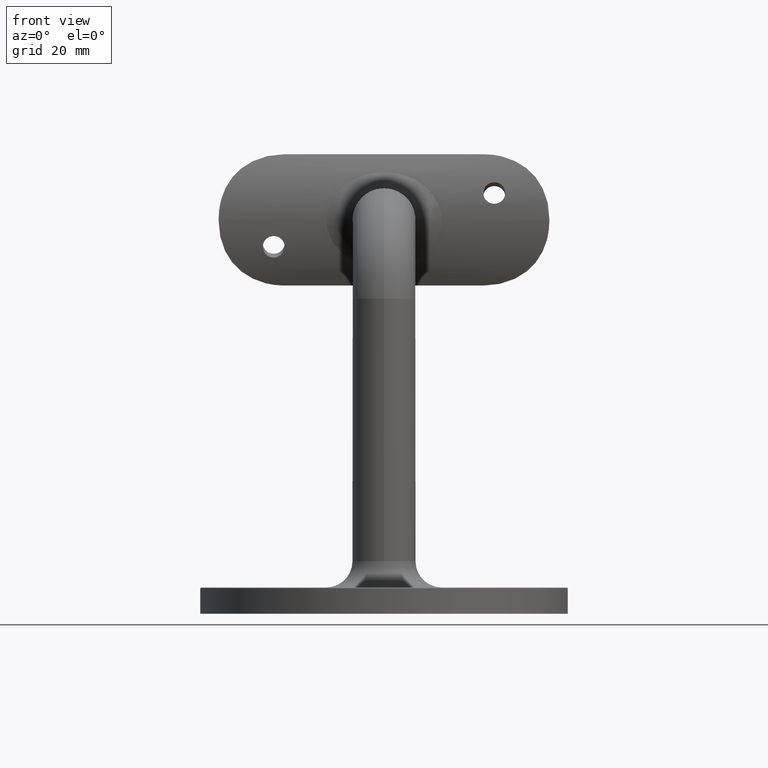
[diagram: clean part render]
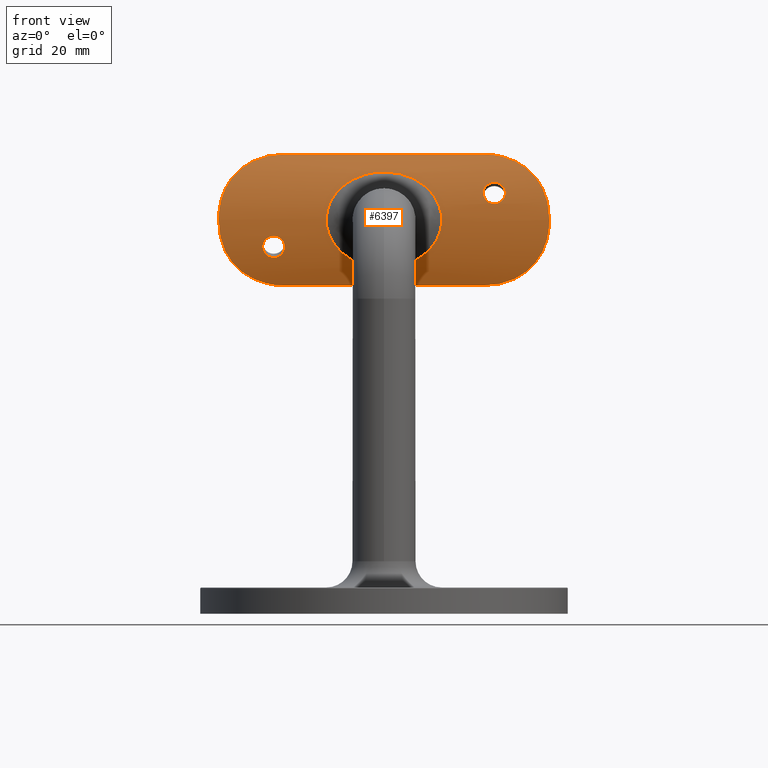
[diagram: same view with one face highlighted and labeled with its STEP entity id]
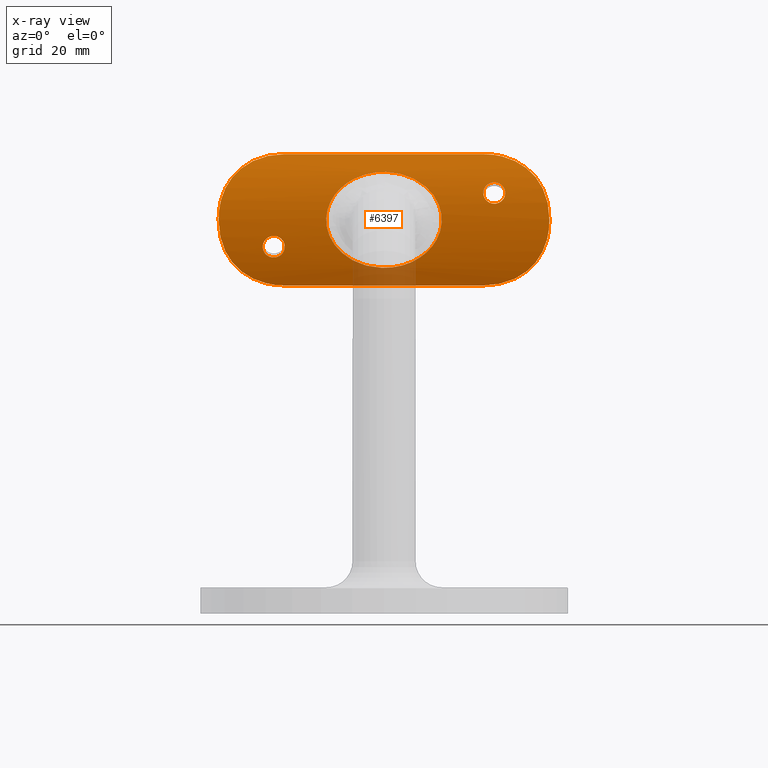
[diagram: x-ray of the same camera — body ghosted, the highlighted face saturated]
A machine part, front view. The second image highlights one B-rep face of the part: STEP entity #6397.
The next image is the same camera in x-ray: the body ghosted, the highlighted face saturated — about 4% of this face is hidden behind the body in this view.
In plain terms, the highlighted cylindrical surface (partial cylindrical patch) has radius 24.7 mm, axis along (-1, -0, -0).
Its self-contained STEP definition (entity closure, byte-faithful):
#63 = AXIS2_PLACEMENT_3D ( 'NONE', #14861, #9774, #8463 ) ;
#69 = EDGE_CURVE ( 'NONE', #14008, #1720, #5867, .T. ) ;
#77 = CARTESIAN_POINT ( 'NONE',  ( 4.872454573996778393, 42.90276968480641528, 83.20664368184917237 ) ) ;
#84 = CARTESIAN_POINT ( 'NONE',  ( -20.72782808017908351, 44.85291421594786954, 87.42658132568875828 ) ) ;
#210 = B_SPLINE_CURVE_WITH_KNOTS ( 'NONE', 3,
 ( #11299, #12545, #15004, #2520, #1278, #13742, #77, #7501, #8777, #5959, #12151, #934, #13405, #7168, #9677, #5905, #2177, #3433, #12194, #4685, #13455, #2127, #10917, #14663, #15913, #3377, #8433, #10275, #7760, #2760, #266, #1520, #14005, #6507, #15256, #10509, #4343, #6796, #7230, #13902, #7508, #6259, #10037, #13801, #4988, #4079, #11503, #2908 ),
 .UNSPECIFIED., .F., .F.,
 ( 4, 2, 2, 2, 2, 2, 2, 2, 2, 2, 2, 2, 2, 2, 2, 2, 2, 2, 2, 2, 2, 2, 2, 4 ),
 ( 0.03253568018710911725, 0.03454657164142777015, 0.03655746309574642305, 0.03756290882290573563, 0.03856835455006505514, 0.04057924600438370805, 0.04158469173154303450, 0.04259013745870236095, 0.04460102891302097916, 0.04560647464018028480, 0.04661192036733959737, 0.04761736609449890301, 0.04862281182165821558, 0.05063370327597683379, 0.05163914900313612555, 0.05264459473029541037, 0.05365004045745470906, 0.05465548618461399388, 0.05666637763893260515, 0.05867726909325121643, 0.06068816054756983464, 0.06169360627472914027, 0.06269905200188845285, 0.06470994345620707799 ),
 .UNSPECIFIED. ) ;
#247 = CARTESIAN_POINT ( 'NONE',  ( -1.684584452126166143, 43.22013183291234384, 65.94287593801342950 ) ) ;
#266 = CARTESIAN_POINT ( 'NONE',  ( 9.996395401446841689, 41.79716958061870713, 71.16955994305570243 ) ) ;
#302 = CARTESIAN_POINT ( 'NONE',  ( -31.50000000000000711, 41.50205144881955022, 75.90362661367565522 ) ) ;
#361 = CARTESIAN_POINT ( 'NONE',  ( -6.600682251767399755, 42.61293439171232222, 82.34144853293044264 ) ) ;
#414 = CARTESIAN_POINT ( 'NONE',  ( -10.43769755079440209, 41.66950443331052867, 72.09429772740101328 ) ) ;
#459 = CARTESIAN_POINT ( 'NONE',  ( -8.401301433148992359, 42.21694680516461062, 80.91288351429837178 ) ) ;
#504 = CARTESIAN_POINT ( 'NONE',  ( 22.99315008041344299, 41.90802329249095948, 79.47281540614903861 ) ) ;
#514 = CARTESIAN_POINT ( 'NONE',  ( -27.76184477868658362, 43.32093708120258668, 65.68707166927234198 ) ) ;
#614 = CARTESIAN_POINT ( 'NONE',  ( 22.66945329582349089, 42.33842489656655061, 81.38187100989847522 ) ) ;
#777 = CARTESIAN_POINT ( 'NONE',  ( -22.67000526458961929, 41.80574735680990983, 71.12399617387612238 ) ) ;
#785 = CIRCLE ( 'NONE', #6466, 24.69999999999999929 ) ;
#800 = VERTEX_POINT ( 'NONE', #15422 ) ;
#907 = DIRECTION ( 'NONE',  ( -1.000000000000000000, -0.000000000000000000, -0.000000000000000000 ) ) ;
#926 = CARTESIAN_POINT ( 'NONE',  ( -23.04472287198527525, 42.15912961825769401, 69.32633465668399708 ) ) ;
#928 = CARTESIAN_POINT ( 'NONE',  ( -19.17799096240807089, 41.84250551968166576, 70.89932851290916460 ) ) ;
#934 = CARTESIAN_POINT ( 'NONE',  ( 7.944999591830629093, 42.32493675499453190, 81.33380413622651872 ) ) ;
#960 = CARTESIAN_POINT ( 'NONE',  ( 31.14613448684933772, 41.72781713171702478, 78.37170682471537475 ) ) ;
#966 = CARTESIAN_POINT ( 'NONE',  ( -31.50000000000000000, 66.19999999999997442, 75.00000000000001421 ) ) ;
#982 = CARTESIAN_POINT ( 'NONE',  ( -21.00000000000000000, 41.69061854573615733, 71.93728539863921867 ) ) ;
#1023 = B_SPLINE_CURVE_WITH_KNOTS ( 'NONE', 3,
 ( #4762, #14631, #14532, #15936, #960, #12126, #5931, #13481, #15779, #5824, #14688, #5985, #9554, #8298, #2043, #5878, #3296, #12076, #2202, #9608, #10989, #7252, #14577, #8352, #10885, #7137 ),
 .UNSPECIFIED., .F., .F.,
 ( 4, 2, 2, 2, 2, 2, 2, 2, 2, 2, 2, 2, 4 ),
 ( 0.000000000000000000, 0.002503786883920802904, 0.003755680325881185274, 0.005007573767841567644, 0.007511360651762287281, 0.008763254093722647534, 0.01001514753568300692, 0.01126704097764336804, 0.01251893441960372569, 0.01502272130352447568, 0.01627461474548485415, 0.01752650818744522915, 0.02003029507136598608 ),
 .UNSPECIFIED. ) ;
#1033 = CARTESIAN_POINT ( 'NONE',  ( -21.00000000000000000, 41.69061854573615733, 71.93728539863921867 ) ) ;
#1034 = CARTESIAN_POINT ( 'NONE',  ( -19.32868947752261235, 42.33779530304315131, 68.62048294880501942 ) ) ;
#1113 = EDGE_CURVE ( 'NONE', #5443, #14988, #785, .T. ) ;
#1162 = CARTESIAN_POINT ( 'NONE',  ( 21.00000000000000000, 42.56384764717074631, 82.17093452444278512 ) ) ;
#1278 = CARTESIAN_POINT ( 'NONE',  ( 3.635122674162370782, 43.06387443427399120, 83.65233218203685794 ) ) ;
#1345 = CARTESIAN_POINT ( 'NONE',  ( -21.95443101760652738, 44.72812351044601797, 87.20882954038792434 ) ) ;
#1395 = CARTESIAN_POINT ( 'NONE',  ( -31.43619966513210784, 41.54736192328785194, 76.73851407531218172 ) ) ;
#1494 = CARTESIAN_POINT ( 'NONE',  ( -7.440181555786860912, 42.43770793998948676, 68.25539880285865024 ) ) ;
#1496 = DIRECTION ( 'NONE',  ( 0.000000000000000000, 0.000000000000000000, 1.000000000000000000 ) ) ;
#1520 = CARTESIAN_POINT ( 'NONE',  ( 9.658252562446143941, 41.89153585306718242, 70.61035601395668948 ) ) ;
#1552 = CARTESIAN_POINT ( 'NONE',  ( -5.140847557138129353, 42.86287834460944879, 83.09264467946607624 ) ) ;
#1603 = CARTESIAN_POINT ( 'NONE',  ( -2.947382341911235937, 43.13193455389411923, 83.83131014485644528 ) ) ;
#1654 = CARTESIAN_POINT ( 'NONE',  ( -10.93805281357848891, 41.51907679513693950, 76.02480747972933273 ) ) ;
#1708 = CARTESIAN_POINT ( 'NONE',  ( -7.403834470665106693, 42.44566420942617668, 81.77205019115316986 ) ) ;
#1720 = VERTEX_POINT ( 'NONE', #11779 ) ;
#1745 = CARTESIAN_POINT ( 'NONE',  ( -20.99999999999999289, 42.56384764717074631, 67.82906547555724330 ) ) ;
#1804 = CARTESIAN_POINT ( 'NONE',  ( -29.35906535816679508, 42.65880499650769053, 67.51469781237690881 ) ) ;
#1945 = EDGE_CURVE ( 'NONE', #7347, #7781, #9642, .T. ) ;
#2043 = CARTESIAN_POINT ( 'NONE',  ( 27.45985867694583860, 43.43162678261797538, 84.57945683619591648 ) ) ;
#2050 = FACE_BOUND ( 'NONE', #8150, .T. ) ;
#2066 = CARTESIAN_POINT ( 'NONE',  ( -21.54380894553168702, 42.54439526066104804, 67.89344794952482687 ) ) ;
#2072 = VECTOR ( 'NONE', #907, 1000.000000000000000 ) ;
#2119 = CARTESIAN_POINT ( 'NONE',  ( -19.70982308816636674, 41.74575149965352949, 71.51901036193714845 ) ) ;
#2127 = CARTESIAN_POINT ( 'NONE',  ( 10.89275932152678905, 41.53295335769302454, 76.31568997514895614 ) ) ;
#2169 = CARTESIAN_POINT ( 'NONE',  ( -22.38716911029294110, 41.76014907138161192, 71.42322260092714714 ) ) ;
#2171 = CARTESIAN_POINT ( 'NONE',  ( -19.11343352862433420, 41.86275955355295508, 70.78041734081409686 ) ) ;
#2177 = CARTESIAN_POINT ( 'NONE',  ( 9.864512733696521707, 41.83505211019727454, 79.09863196103536609 ) ) ;
#2202 = CARTESIAN_POINT ( 'NONE',  ( 24.72123905342252570, 44.25004455545104776, 86.33129445782418543 ) ) ;
#2223 = CARTESIAN_POINT ( 'NONE',  ( -18.96737424509784731, 41.93194380461432758, 70.39897104927369753 ) ) ;
#2236 = CARTESIAN_POINT ( 'NONE',  ( 18.96727415913833426, 42.15855990290837951, 80.66721325637685425 ) ) ;
#2246 = EDGE_CURVE ( 'NONE', #15912, #5356, #15823, .T. ) ;
#2280 = CARTESIAN_POINT ( 'NONE',  ( -19.61080903216292981, 42.41776290519192116, 68.32882141953935218 ) ) ;
#2292 = CARTESIAN_POINT ( 'NONE',  ( 19.61160801795997344, 41.76033104013364294, 78.57798753950463322 ) ) ;
#2437 = CARTESIAN_POINT ( 'NONE',  ( -20.99999999999999289, 42.56384764717074631, 67.82906547555724330 ) ) ;
#2483 = ORIENTED_EDGE ( 'NONE', *, *, #9386, .T. ) ;
#2520 = CARTESIAN_POINT ( 'NONE',  ( 2.995363633577913909, 43.12816206772312455, 83.82023724693674183 ) ) ;
#2526 = CARTESIAN_POINT ( 'NONE',  ( -23.16330365484825293, 44.55456516087998864, 86.89877737650746781 ) ) ;
#2688 = CARTESIAN_POINT ( 'NONE',  ( -5.482774161952454151, 42.81251327661428263, 67.04855217261797407 ) ) ;
#2702 = B_SPLINE_CURVE_WITH_KNOTS ( 'NONE', 3,
 ( #5216, #3777, #247, #5046, #3928, #9003, #2688, #11457, #12716, #7733, #1494, #6316, #11564, #12874, #15333, #7958, #9107, #6693, #414, #11673, #4037, #9158, #2844, #6588, #1654, #2900, #4144, #12927, #2786, #5434, #12816, #15444, #10364, #459, #7852, #9213, #1708, #361, #10474, #1552, #10307, #11622, #5326, #1603, #14097, #4086, #5376, #14151, #6642, #15394 ),
 .UNSPECIFIED., .F., .F.,
 ( 4, 2, 2, 2, 2, 2, 2, 2, 2, 2, 2, 2, 2, 2, 2, 2, 2, 2, 2, 2, 2, 2, 2, 2, 4 ),
 ( 0.0003546552613431988707, 0.002365969319203485143, 0.004377283377063771741, 0.006388597434924058772, 0.007394254463854213130, 0.008399911492784368355, 0.01041122555064469962, 0.01141688257957486873, 0.01242253960850503609, 0.01342819663743520520, 0.01443385366636537430, 0.01644516772422575240, 0.01745082475315595794, 0.01845648178208616694, 0.01946213881101637247, 0.02046779583994658147, 0.02247910989780700294, 0.02348476692673721195, 0.02449042395566742442, 0.02650173801352786671, 0.02750739504245807918, 0.02851305207138829165, 0.03052436612924869924, 0.03153002315817891171, 0.03253568018710911725 ),
 .UNSPECIFIED. ) ;
#2760 = CARTESIAN_POINT ( 'NONE',  ( 10.14996444479055882, 41.75323852907643385, 71.45913760891259869 ) ) ;
#2786 = CARTESIAN_POINT ( 'NONE',  ( -10.42426469638722963, 41.67353616232283997, 77.93846363255728704 ) ) ;
#2844 = CARTESIAN_POINT ( 'NONE',  ( -11.02290855594820407, 41.49294906134998939, 74.68174468035866198 ) ) ;
#2857 = VERTEX_POINT ( 'NONE', #10444 ) ;
#2900 = CARTESIAN_POINT ( 'NONE',  ( -10.81991158239479134, 41.55512026543118509, 76.68169660863586046 ) ) ;
#2908 = CARTESIAN_POINT ( 'NONE',  ( -0.3546183182466051687, 43.25466578490586045, 65.85660687941118852 ) ) ;
#3047 = CARTESIAN_POINT ( 'NONE',  ( 22.29017691183364036, 42.44408632247779423, 81.76639667201912687 ) ) ;
#3105 = CARTESIAN_POINT ( 'NONE',  ( 22.82200903759193977, 42.28042820293448756, 81.16093572834569159 ) ) ;
#3154 = CARTESIAN_POINT ( 'NONE',  ( 26.47972500497947124, 43.76017084440333349, 64.67520996315944615 ) ) ;
#3259 = CARTESIAN_POINT ( 'NONE',  ( 22.38919096783708440, 41.76043254828295659, 78.57868239147259715 ) ) ;
#3278 = CARTESIAN_POINT ( 'NONE',  ( -22.36536429864082010, 44.67587406150044416, 62.88315460766730070 ) ) ;
#3296 = CARTESIAN_POINT ( 'NONE',  ( 26.49022153365129739, 43.75691971962947946, 85.31775950560481192 ) ) ;
#3316 = CARTESIAN_POINT ( 'NONE',  ( 30.93022335760628039, 41.85470895402843894, 70.80908388593627478 ) ) ;
#3319 = CARTESIAN_POINT ( 'NONE',  ( -22.38839198204003722, 42.41795279464010093, 68.32814535359639763 ) ) ;
#3334 = CARTESIAN_POINT ( 'NONE',  ( -29.11861682195713641, 42.76763743499584081, 67.18168762880490874 ) ) ;
#3367 = CARTESIAN_POINT ( 'NONE',  ( -21.67722120695393428, 42.53271932294439495, 67.93228307262974397 ) ) ;
#3377 = CARTESIAN_POINT ( 'NONE',  ( 10.96156747539129839, 41.51183128397488531, 73.98716353887168395 ) ) ;
#3426 = CARTESIAN_POINT ( 'NONE',  ( -22.28106712163712189, 41.74776758636469509, 71.50942118572591255 ) ) ;
#3433 = CARTESIAN_POINT ( 'NONE',  ( 10.30854332367649739, 41.70742850963611659, 78.20839667055454925 ) ) ;
#3483 = CARTESIAN_POINT ( 'NONE',  ( -18.90010996980999280, 42.01059218048722244, 70.00182301232003113 ) ) ;
#3500 = CARTESIAN_POINT ( 'NONE',  ( 19.71893287836289232, 42.44202783999298845, 81.75681650730777505 ) ) ;
#3605 = CARTESIAN_POINT ( 'NONE',  ( 18.91362225870622282, 42.09817364655958727, 80.40463823617312755 ) ) ;
#3619 = EDGE_CURVE ( 'NONE', #7781, #7347, #8395, .T. ) ;
#3777 = CARTESIAN_POINT ( 'NONE',  ( -1.024846816406425498, 43.24750153583585899, 65.87458555397363114 ) ) ;
#3881 = CARTESIAN_POINT ( 'NONE',  ( -26.81549077367023060, 43.65248053039679377, 85.08834457600865164 ) ) ;
#3928 = CARTESIAN_POINT ( 'NONE',  ( -3.623487483101474282, 43.06527764429805671, 66.34384663921252923 ) ) ;
#3959 = CARTESIAN_POINT ( 'NONE',  ( -20.72242577379918060, 42.56384764717074631, 67.82906547555725751 ) ) ;
#3983 = CARTESIAN_POINT ( 'NONE',  ( -22.35978953641645006, 44.67660284347806510, 87.11813216931138015 ) ) ;
#3992 = CARTESIAN_POINT ( 'NONE',  ( 21.00000000000000355, 41.69061854573615733, 78.06271460136079554 ) ) ;
#4037 = CARTESIAN_POINT ( 'NONE',  ( -10.75241789670703874, 41.57557865337954439, 73.04174373644153206 ) ) ;
#4079 = CARTESIAN_POINT ( 'NONE',  ( 0.9833348216104869088, 43.24850895064719936, 65.87163954603525440 ) ) ;
#4086 = CARTESIAN_POINT ( 'NONE',  ( -1.305529363273110643, 43.23253058090237033, 84.08775722388568852 ) ) ;
#4138 = CARTESIAN_POINT ( 'NONE',  ( -26.49022153365132581, 43.75691971962949367, 64.68224049439521650 ) ) ;
#4144 = CARTESIAN_POINT ( 'NONE',  ( -10.74026023062293334, 41.57930662874493777, 77.00276092996061550 ) ) ;
#4178 = CARTESIAN_POINT ( 'NONE',  ( -31.50000000000000000, 41.50006793715025566, 74.94206822453736550 ) ) ;
#4253 = CARTESIAN_POINT ( 'NONE',  ( -23.56716310814718085, 44.48283103672177674, 63.23217238623349346 ) ) ;
#4343 = CARTESIAN_POINT ( 'NONE',  ( 7.682084455192424777, 42.38752580542860926, 68.42639837479956100 ) ) ;
#4353 = CARTESIAN_POINT ( 'NONE',  ( 21.55045487427794981, 42.54764887497260872, 82.11809654606295794 ) ) ;
#4410 = CARTESIAN_POINT ( 'NONE',  ( 26.81549077367023770, 43.65248053039680087, 64.91165542399136257 ) ) ;
#4411 = CARTESIAN_POINT ( 'NONE',  ( 22.88786556771905012, 41.86320422619793646, 79.22215365422626121 ) ) ;
#4470 = CARTESIAN_POINT ( 'NONE',  ( 21.93216301713749772, 41.71801343077241597, 78.27492053095555491 ) ) ;
#4519 = CARTESIAN_POINT ( 'NONE',  ( 21.00000000000000355, 41.69061854573615733, 78.06271460136079554 ) ) ;
#4521 = CARTESIAN_POINT ( 'NONE',  ( -21.93152746722362068, 42.50266910235000495, 68.03370216404371718 ) ) ;
#4537 = CARTESIAN_POINT ( 'NONE',  ( -27.45985867694584570, 43.43162678261797538, 65.42054316380411194 ) ) ;
#4574 = CARTESIAN_POINT ( 'NONE',  ( -23.08637774129378428, 41.98362160070362847, 70.13428676786323024 ) ) ;
#4639 = EDGE_CURVE ( 'NONE', #7353, #7407, #12264, .T. ) ;
#4676 = CARTESIAN_POINT ( 'NONE',  ( -21.13881933601298257, 42.56384764717076052, 67.82906547555725751 ) ) ;
#4678 = CARTESIAN_POINT ( 'NONE',  ( -18.91343211688804260, 42.09780450375566119, 69.59701994377955714 ) ) ;
#4685 = CARTESIAN_POINT ( 'NONE',  ( 10.66105350541461227, 41.60315786708432739, 77.27673003035589261 ) ) ;
#4731 = CARTESIAN_POINT ( 'NONE',  ( -18.96660236124924026, 42.15795642771301033, 69.33535860840690646 ) ) ;
#4741 = CARTESIAN_POINT ( 'NONE',  ( 20.72469393776530566, 41.69230413193890428, 78.07629011449972722 ) ) ;
#4762 = CARTESIAN_POINT ( 'NONE',  ( 31.50000000000000000, 41.50006793715026276, 75.05793177546267714 ) ) ;
#4788 = CARTESIAN_POINT ( 'NONE',  ( -18.91381429018982629, 41.98338526003556836, 70.13547644224469479 ) ) ;
#4885 = DIRECTION ( 'NONE',  ( 0.000000000000000000, 0.000000000000000000, -1.000000000000000000 ) ) ;
#4914 = CARTESIAN_POINT ( 'NONE',  ( 21.00000000000000355, 41.69061854573615733, 78.06271460136079554 ) ) ;
#4920 = B_SPLINE_CURVE_WITH_KNOTS ( 'NONE', 3,
 ( #5573, #14454, #4353, #13131, #3047, #9467, #614, #3105, #12959, #5633, #9418, #14243, #15481, #6946, #8161, #7996, #504, #4411, #9248, #10519, #13446, #3259, #12038, #11984, #4470, #8317, #7101, #4519 ),
 .UNSPECIFIED., .F., .F.,
 ( 4, 2, 2, 2, 2, 2, 2, 2, 2, 2, 2, 2, 2, 4 ),
 ( 0.006568519835502053920, 0.007389394228341419207, 0.008210268621180785362, 0.008620705817600465837, 0.009031143014020148047, 0.009441580210439828522, 0.009852017406859508997, 0.01026245460327919121, 0.01067289179969886995, 0.01108332899611855216, 0.01149376619253823090, 0.01190420338895791311, 0.01231464058537759358, 0.01313551497821697188 ),
 .UNSPECIFIED. ) ;
#4929 = CARTESIAN_POINT ( 'NONE',  ( -19.89616594452949982, 44.89647916423201224, 87.50000000000001421 ) ) ;
#4963 = EDGE_LOOP ( 'NONE', ( #12999, #2483, #11458, #13799, #5041, #14998, #8709, #5160 ) ) ;
#4984 = CYLINDRICAL_SURFACE ( 'NONE', #11825, 24.69999999999999929 ) ;
#4988 = CARTESIAN_POINT ( 'NONE',  ( 1.971700755935792637, 43.19966506391255479, 65.99574715374437517 ) ) ;
#5041 = ORIENTED_EDGE ( 'NONE', *, *, #2246, .F. ) ;
#5046 = CARTESIAN_POINT ( 'NONE',  ( -2.983823127428884447, 43.12903543063583811, 66.17750425955951243 ) ) ;
#5154 = CARTESIAN_POINT ( 'NONE',  ( -27.75623312195594394, 43.32302492326648746, 84.31803640835045144 ) ) ;
#5160 = ORIENTED_EDGE ( 'NONE', *, *, #13692, .T. ) ;
#5216 = CARTESIAN_POINT ( 'NONE',  ( -0.3546183182466051687, 43.25466578490586045, 65.85660687941118852 ) ) ;
#5245 = CARTESIAN_POINT ( 'NONE',  ( -19.71639185424837493, 42.44151655188857575, 68.24497291468439641 ) ) ;
#5326 = CARTESIAN_POINT ( 'NONE',  ( -3.899554988725919991, 43.02996908631596540, 83.55856810652599620 ) ) ;
#5327 = DIRECTION ( 'NONE',  ( -1.000000000000000000, -0.000000000000000000, -0.000000000000000000 ) ) ;
#5356 = VERTEX_POINT ( 'NONE', #14910 ) ;
#5376 = CARTESIAN_POINT ( 'NONE',  ( -0.9711695557233221976, 43.24401331549001526, 84.11663177322598983 ) ) ;
#5430 = EDGE_CURVE ( 'NONE', #1720, #14008, #4920, .T. ) ;
#5434 = CARTESIAN_POINT ( 'NONE',  ( -10.15048852191359252, 41.75308818990873760, 78.53984460822333347 ) ) ;
#5443 = VERTEX_POINT ( 'NONE', #11819 ) ;
#5446 = B_SPLINE_CURVE_WITH_KNOTS ( 'NONE', 3,
 ( #8101, #13178, #13395, #14452, #14546, #9667, #9520, #11936, #15899, #3154, #4410, #6944, #6999, #15742, #8268, #5788, #9623, #15696, #3316, #14648, #10745, #5736, #7099, #13293 ),
 .UNSPECIFIED., .F., .F.,
 ( 4, 2, 2, 2, 2, 2, 2, 2, 2, 2, 2, 4 ),
 ( 0.000000000000000000, 0.002502625019990161511, 0.003753937529985237713, 0.005005250039980314349, 0.007507875059970452875, 0.008759187569965520836, 0.01001050007996058880, 0.01251312509995073166, 0.01501575011994087452, 0.01626706262993594596, 0.01751837513993101739, 0.02002100015992111862 ),
 .UNSPECIFIED. ) ;
#5480 = CARTESIAN_POINT ( 'NONE',  ( -31.14613448684934482, 41.72781713171702478, 71.62829317528465367 ) ) ;
#5573 = CARTESIAN_POINT ( 'NONE',  ( 21.00000000000000000, 42.56384764717074631, 82.17093452444278512 ) ) ;
#5633 = CARTESIAN_POINT ( 'NONE',  ( 22.99209282730399195, 42.18964053331970376, 80.79730874170743959 ) ) ;
#5736 = CARTESIAN_POINT ( 'NONE',  ( 31.43619966513210784, 41.54736192328784483, 73.26148592468786092 ) ) ;
#5739 = CARTESIAN_POINT ( 'NONE',  ( -22.67882881705300591, 42.34043159889679941, 68.60870509865992517 ) ) ;
#5788 = CARTESIAN_POINT ( 'NONE',  ( 30.01288217714120421, 42.35083860774977182, 68.53262106650640817 ) ) ;
#5804 = CARTESIAN_POINT ( 'NONE',  ( -21.95871173106137419, 44.72763345591846473, 62.79203011645144272 ) ) ;
#5824 = CARTESIAN_POINT ( 'NONE',  ( 29.35906535816679508, 42.65880499650769764, 82.48530218762311961 ) ) ;
#5853 = LINE ( 'NONE', #6629, #7810 ) ;
#5867 = B_SPLINE_CURVE_WITH_KNOTS ( 'NONE', 3,
 ( #4914, #12258, #4741, #7234, #15973, #9800, #16083, #14774, #2292, #7339, #12319, #11130, #9744, #6084, #3605, #2236, #8485, #8611, #14939, #11024, #12372, #6131, #3500, #7393, #14890, #16197, #16138, #8662, #8713, #1162 ),
 .UNSPECIFIED., .F., .F.,
 ( 4, 2, 2, 2, 2, 2, 2, 2, 2, 2, 2, 2, 2, 2, 4 ),
 ( 3.469446951953614189E-18, 0.0004105324897188924647, 0.0008210649794377814599, 0.001231597469156670401, 0.001642129958875559450, 0.002463194938313335164, 0.003284259917751111094, 0.003694792407469978893, 0.004105324897188847126, 0.004515857386907714925, 0.004926389876626581857, 0.005336922366345449656, 0.005747454856064318322, 0.006157987345783186121, 0.006568519835502053920 ),
 .UNSPECIFIED. ) ;
#5878 = CARTESIAN_POINT ( 'NONE',  ( 26.82499121423020227, 43.64934244133861085, 85.08130229258738098 ) ) ;
#5905 = CARTESIAN_POINT ( 'NONE',  ( 9.504741418359168748, 41.93528325702028781, 79.64570070546102443 ) ) ;
#5909 = CARTESIAN_POINT ( 'NONE',  ( -19.04999999999999716, 44.89647916423201224, 62.50000000000000000 ) ) ;
#5931 = CARTESIAN_POINT ( 'NONE',  ( 30.80823856287334550, 41.92441803994974947, 79.57611793218889318 ) ) ;
#5959 = CARTESIAN_POINT ( 'NONE',  ( 6.640775224205141214, 42.60590183804984576, 82.31576050462099658 ) ) ;
#5985 = CARTESIAN_POINT ( 'NONE',  ( 28.60672686285702326, 42.98767845030398860, 83.44924564590877480 ) ) ;
#6074 = CARTESIAN_POINT ( 'NONE',  ( -19.17655866422131083, 42.27980555715065236, 68.84148162118228242 ) ) ;
#6084 = CARTESIAN_POINT ( 'NONE',  ( 18.89995074452213686, 42.06808466673757607, 80.26872298071316436 ) ) ;
#6131 = CARTESIAN_POINT ( 'NONE',  ( 19.61283088970707311, 42.41827876637010064, 81.67303417805753440 ) ) ;
#6259 = CARTESIAN_POINT ( 'NONE',  ( 3.276495582675281515, 43.09681216102244861, 66.26259195758608200 ) ) ;
#6316 = CARTESIAN_POINT ( 'NONE',  ( -8.203768577675530693, 42.26709759804024458, 68.87702199635295131 ) ) ;
#6397 = ADVANCED_FACE ( 'NONE', ( #12053, #9686, #2050, #14981 ), #4984, .T. ) ;
#6428 = CARTESIAN_POINT ( 'NONE',  ( -31.14350587267742654, 41.72940438951201259, 78.38333037939663939 ) ) ;
#6459 = CARTESIAN_POINT ( 'NONE',  ( -20.06783698286251294, 42.50256219251413370, 68.03406774220044895 ) ) ;
#6466 = AXIS2_PLACEMENT_3D ( 'NONE', #966, #9712, #4885 ) ;
#6507 = CARTESIAN_POINT ( 'NONE',  ( 9.074657140377436093, 42.04771416686172358, 69.82046775699014063 ) ) ;
#6588 = CARTESIAN_POINT ( 'NONE',  ( -10.97631025176674058, 41.50729301419539752, 75.68748443369914014 ) ) ;
#6629 = CARTESIAN_POINT ( 'NONE',  ( 31.50000000000000000, 44.89647916423201224, 87.50000000000001421 ) ) ;
#6642 = CARTESIAN_POINT ( 'NONE',  ( 0.02557691610866880821, 43.25820550326915992, 84.15227610839369277 ) ) ;
#6693 = CARTESIAN_POINT ( 'NONE',  ( -10.30847971580998568, 41.70744122287656097, 71.79177670321429616 ) ) ;
#6796 = CARTESIAN_POINT ( 'NONE',  ( 6.615639249147024614, 42.61000298562032640, 67.66800119643190214 ) ) ;
#6944 = CARTESIAN_POINT ( 'NONE',  ( 27.45364639610570379, 43.43387415432265186, 65.41517634511721724 ) ) ;
#6946 = CARTESIAN_POINT ( 'NONE',  ( 23.10010866437672661, 42.01126248554024301, 80.00141992992458029 ) ) ;
#6998 = ORIENTED_EDGE ( 'NONE', *, *, #13758, .T. ) ;
#6999 = CARTESIAN_POINT ( 'NONE',  ( 27.75623312195593684, 43.32302492326648036, 65.68196359164957698 ) ) ;
#7002 = CARTESIAN_POINT ( 'NONE',  ( -22.82203294508318692, 41.84252308460148129, 70.89923348680483173 ) ) ;
#7066 = CARTESIAN_POINT ( 'NONE',  ( -19.89617486812062452, 44.89647916423202645, 62.49999999999998579 ) ) ;
#7099 = CARTESIAN_POINT ( 'NONE',  ( 31.50000000000001421, 41.50205144881955732, 74.09637338632440162 ) ) ;
#7101 = CARTESIAN_POINT ( 'NONE',  ( 21.27757422620081940, 41.69061854573615022, 78.06271460136078133 ) ) ;
#7137 = CARTESIAN_POINT ( 'NONE',  ( 19.05000000000000071, 44.89647916423201224, 87.50000000000001421 ) ) ;
#7168 = CARTESIAN_POINT ( 'NONE',  ( 8.657776722451282936, 42.15400040593360131, 80.65127986809949334 ) ) ;
#7218 = CARTESIAN_POINT ( 'NONE',  ( -20.72588880271240086, 41.69061854573615733, 71.93728539863923288 ) ) ;
#7230 = CARTESIAN_POINT ( 'NONE',  ( 6.039902847826977172, 42.71815513196272462, 67.33308272637897574 ) ) ;
#7234 = CARTESIAN_POINT ( 'NONE',  ( 20.45619105446832364, 41.69903461773439801, 78.12944291639442440 ) ) ;
#7252 = CARTESIAN_POINT ( 'NONE',  ( 22.36536429864081654, 44.67587406150045837, 87.11684539233273483 ) ) ;
#7339 = CARTESIAN_POINT ( 'NONE',  ( 19.32117118294700475, 41.80362583278068200, 78.86582233112864060 ) ) ;
#7347 = VERTEX_POINT ( 'NONE', #8008 ) ;
#7353 = VERTEX_POINT ( 'NONE', #13409 ) ;
#7393 = CARTESIAN_POINT ( 'NONE',  ( 19.94633573475444166, 42.48418427137171705, 81.90332490868297555 ) ) ;
#7407 = VERTEX_POINT ( 'NONE', #5909 ) ;
#7433 = CARTESIAN_POINT ( 'NONE',  ( -22.05366426524557610, 41.72668906740342010, 71.66040983569178024 ) ) ;
#7501 = CARTESIAN_POINT ( 'NONE',  ( 5.474658876842727118, 42.81045936920725836, 82.93973110127195980 ) ) ;
#7508 = CARTESIAN_POINT ( 'NONE',  ( 4.233178313772459234, 42.99399177680873407, 66.53775840358845528 ) ) ;
#7628 = CARTESIAN_POINT ( 'NONE',  ( -28.61587762106244526, 42.99051529841012353, 83.47212987164294873 ) ) ;
#7733 = CARTESIAN_POINT ( 'NONE',  ( -7.173270271926425856, 42.49469227415409733, 68.05845662655173101 ) ) ;
#7760 = CARTESIAN_POINT ( 'NONE',  ( 10.42364561360836639, 41.67371798671987904, 72.06004362380969042 ) ) ;
#7781 = VERTEX_POINT ( 'NONE', #1745 ) ;
#7792 = CARTESIAN_POINT ( 'NONE',  ( -27.45364639610570379, 43.43387415432265186, 84.58482365488279697 ) ) ;
#7810 = VECTOR ( 'NONE', #12646, 1000.000000000000000 ) ;
#7852 = CARTESIAN_POINT ( 'NONE',  ( -8.163952536029045248, 42.27387206978911394, 81.13839376468975217 ) ) ;
#7926 = ORIENTED_EDGE ( 'NONE', *, *, #69, .T. ) ;
#7958 = CARTESIAN_POINT ( 'NONE',  ( -9.851977819589997409, 41.83787623013447643, 70.91881679136889716 ) ) ;
#7978 = VERTEX_POINT ( 'NONE', #11643 ) ;
#7996 = CARTESIAN_POINT ( 'NONE',  ( 23.03339763875077040, 41.93248307824691068, 79.60387268281004935 ) ) ;
#8005 = CARTESIAN_POINT ( 'NONE',  ( -28.60672686285701971, 42.98767845030398149, 66.55075435409122520 ) ) ;
#8008 = CARTESIAN_POINT ( 'NONE',  ( -21.00000000000000000, 41.69061854573615733, 71.93728539863921867 ) ) ;
#8062 = CARTESIAN_POINT ( 'NONE',  ( -31.23225478127941201, 41.67518559806848089, 72.03467075880064385 ) ) ;
#8101 = CARTESIAN_POINT ( 'NONE',  ( 19.05000000000000071, 44.89647916423201224, 62.50000000000000000 ) ) ;
#8146 = EDGE_CURVE ( 'NONE', #15912, #7978, #1023, .T. ) ;
#8150 = EDGE_LOOP ( 'NONE', ( #6998, #13835 ) ) ;
#8161 = CARTESIAN_POINT ( 'NONE',  ( 23.08656788311196451, 41.98395881451943268, 79.86737819880542588 ) ) ;
#8268 = CARTESIAN_POINT ( 'NONE',  ( 29.12575807447094434, 42.76853941642706758, 67.15295314761898737 ) ) ;
#8298 = CARTESIAN_POINT ( 'NONE',  ( 27.76184477868657297, 43.32093708120259379, 84.31292833072767223 ) ) ;
#8317 = CARTESIAN_POINT ( 'NONE',  ( 21.55334020117620142, 41.69740923265234755, 78.11835359244919630 ) ) ;
#8352 = CARTESIAN_POINT ( 'NONE',  ( 20.72896249482251818, 44.85290725814717661, 87.42657821746664126 ) ) ;
#8395 = B_SPLINE_CURVE_WITH_KNOTS ( 'NONE', 3,
 ( #9729, #4676, #12039, #2066, #3367, #4521, #13295, #12184, #3319, #5739, #13238, #926, #12091, #10955, #4574, #12145, #13347, #14507, #7002, #777, #9522, #2169, #3426, #7433, #14817, #13553, #16122, #8752, #16180, #1033 ),
 .UNSPECIFIED., .F., .F.,
 ( 4, 2, 2, 2, 2, 2, 2, 2, 2, 2, 2, 2, 2, 2, 4 ),
 ( 1.040834085586084411E-17, 0.0004105324897188756595, 0.0008210649794377409107, 0.001231597469156606216, 0.001642129958875471413, 0.002463194938313202024, 0.003284259917750932418, 0.003694792407469820166, 0.004105324897188708348, 0.004515857386907596097, 0.004926389876626483845, 0.005336922366345371593, 0.005747454856064260209, 0.006157987345783147090, 0.006568519835502035706 ),
 .UNSPECIFIED. ) ;
#8433 = CARTESIAN_POINT ( 'NONE',  ( 10.84497514968896681, 41.54795056991665803, 73.33281494494129049 ) ) ;
#8463 = DIRECTION ( 'NONE',  ( 0.000000000000000000, 0.000000000000000000, -1.000000000000000000 ) ) ;
#8485 = CARTESIAN_POINT ( 'NONE',  ( 19.00695867250912841, 42.18898875676512716, 80.79461194948278546 ) ) ;
#8528 = CARTESIAN_POINT ( 'NONE',  ( -19.11213443228096054, 42.24992616339726226, 68.95846267602988178 ) ) ;
#8611 = CARTESIAN_POINT ( 'NONE',  ( 19.11220714191869163, 42.24995964187077391, 81.04166826396657086 ) ) ;
#8662 = CARTESIAN_POINT ( 'NONE',  ( 20.72367027570482989, 42.55983365711058752, 82.15774139138524390 ) ) ;
#8709 = ORIENTED_EDGE ( 'NONE', *, *, #13560, .T. ) ;
#8713 = CARTESIAN_POINT ( 'NONE',  ( 20.86291258045819674, 42.56384764717076052, 82.17093452444284196 ) ) ;
#8752 = CARTESIAN_POINT ( 'NONE',  ( -21.27632972429518787, 41.69231771400117736, 71.92360023501998967 ) ) ;
#8777 = CARTESIAN_POINT ( 'NONE',  ( 5.772187151404262195, 42.76092393467437347, 82.79279591437234842 ) ) ;
#8834 = CARTESIAN_POINT ( 'NONE',  ( -31.23074625869255527, 41.67611736260425204, 77.97328592975759420 ) ) ;
#8885 = CARTESIAN_POINT ( 'NONE',  ( -30.37436536112261365, 42.16282961108883143, 80.73758688659127358 ) ) ;
#8939 = CARTESIAN_POINT ( 'NONE',  ( -30.01288217714120421, 42.35083860774977893, 81.46737893349359183 ) ) ;
#8941 = CARTESIAN_POINT ( 'NONE',  ( 31.50000000000000000, 66.19999999999997442, 75.00000000000001421 ) ) ;
#9003 = CARTESIAN_POINT ( 'NONE',  ( -4.880859687469400576, 42.90598381215946233, 66.78214265629351587 ) ) ;
#9055 = CARTESIAN_POINT ( 'NONE',  ( -30.80526548978683721, 41.92608818932757231, 79.58487418631969490 ) ) ;
#9107 = CARTESIAN_POINT ( 'NONE',  ( -10.01562453774052663, 41.79162495522837872, 71.20403374005300634 ) ) ;
#9158 = CARTESIAN_POINT ( 'NONE',  ( -10.96578355503279845, 41.51077074891117746, 74.02044092274611842 ) ) ;
#9213 = CARTESIAN_POINT ( 'NONE',  ( -7.664998091427392524, 42.38829982325544421, 81.56828824245880583 ) ) ;
#9248 = CARTESIAN_POINT ( 'NONE',  ( 22.82344133577870338, 41.84291992908625701, 79.10313309862759468 ) ) ;
#9313 = CARTESIAN_POINT ( 'NONE',  ( -30.01654549520749171, 42.34887060729328567, 68.54058277997886250 ) ) ;
#9386 = EDGE_CURVE ( 'NONE', #14988, #7407, #14437, .T. ) ;
#9418 = CARTESIAN_POINT ( 'NONE',  ( 23.03262575490215625, 42.15862042677706967, 80.66745861246802463 ) ) ;
#9467 = CARTESIAN_POINT ( 'NONE',  ( 22.58075345640459730, 42.36664936550912586, 81.48619974851712300 ) ) ;
#9520 = CARTESIAN_POINT ( 'NONE',  ( 23.56136338182878376, 44.48391653378467225, 63.23016829734061162 ) ) ;
#9522 = CARTESIAN_POINT ( 'NONE',  ( -22.58321210335684270, 41.78937213341723123, 71.22893952119305538 ) ) ;
#9554 = CARTESIAN_POINT ( 'NONE',  ( 28.33527914990188279, 43.09896607779019462, 83.74782177804694072 ) ) ;
#9608 = CARTESIAN_POINT ( 'NONE',  ( 23.56716310814718085, 44.48283103672177674, 86.76782761376651365 ) ) ;
#9623 = CARTESIAN_POINT ( 'NONE',  ( 30.37436536112261365, 42.16282961108882432, 69.26241311340875484 ) ) ;
#9627 = CARTESIAN_POINT ( 'NONE',  ( -19.94408806247781385, 41.72468569862477494, 71.67434186520101491 ) ) ;
#9642 = B_SPLINE_CURVE_WITH_KNOTS ( 'NONE', 3,
 ( #982, #7218, #15854, #9627, #2119, #9731, #14597, #928, #2171, #12186, #2223, #4788, #3483, #13448, #4678, #4731, #13554, #8528, #6074, #1034, #9789, #2280, #5245, #12409, #6459, #11167, #3959, #2437 ),
 .UNSPECIFIED., .F., .F.,
 ( 4, 2, 2, 2, 2, 2, 2, 2, 2, 2, 2, 2, 2, 4 ),
 ( 0.006568519835502035706, 0.007389394228341377574, 0.008210268621180719442, 0.008620705817600406856, 0.009031143014020090801, 0.009441580210439776480, 0.009852017406859462159, 0.01026245460327914784, 0.01067289179969883525, 0.01108332899611851920, 0.01149376619253820488, 0.01190420338895789229, 0.01231464058537757623, 0.01313551497821693198 ),
 .UNSPECIFIED. ) ;
#9667 = CARTESIAN_POINT ( 'NONE',  ( 23.16330365484824938, 44.55456516087999574, 63.10122262349254640 ) ) ;
#9677 = CARTESIAN_POINT ( 'NONE',  ( 8.881038610692725044, 42.09759042366158610, 80.40657988287156854 ) ) ;
#9686 = FACE_BOUND ( 'NONE', #10565, .T. ) ;
#9712 = DIRECTION ( 'NONE',  ( 1.000000000000000000, 0.000000000000000000, 0.000000000000000000 ) ) ;
#9729 = CARTESIAN_POINT ( 'NONE',  ( -20.99999999999999289, 42.56384764717074631, 67.82906547555724330 ) ) ;
#9731 = CARTESIAN_POINT ( 'NONE',  ( -19.41924654359540980, 41.78897567542650648, 71.23154128729905210 ) ) ;
#9744 = CARTESIAN_POINT ( 'NONE',  ( 18.90009892015759263, 41.98262138729833737, 79.86658927032301847 ) ) ;
#9774 = DIRECTION ( 'NONE',  ( 1.000000000000000000, 0.000000000000000000, 0.000000000000000000 ) ) ;
#9789 = CARTESIAN_POINT ( 'NONE',  ( -19.41726684760235955, 42.36605717093236478, 68.51597392765891925 ) ) ;
#9800 = CARTESIAN_POINT ( 'NONE',  ( 20.06847253277638643, 41.71796240373510756, 78.27454307454327420 ) ) ;
#10037 = CARTESIAN_POINT ( 'NONE',  ( 2.951370590567972130, 43.12722043704866337, 66.18286088466761896 ) ) ;
#10093 = CARTESIAN_POINT ( 'NONE',  ( -24.71740687779086798, 44.25098456808159852, 86.33311957281102877 ) ) ;
#10254 = CARTESIAN_POINT ( 'NONE',  ( -31.50000000000000000, 41.50006793715026276, 75.05793177546266293 ) ) ;
#10275 = CARTESIAN_POINT ( 'NONE',  ( 10.54419914646575762, 41.63799431067265289, 72.37299823082987871 ) ) ;
#10307 = CARTESIAN_POINT ( 'NONE',  ( -4.834338015322238391, 42.90835521726238255, 83.22220137028919851 ) ) ;
#10364 = CARTESIAN_POINT ( 'NONE',  ( -9.076222209940400631, 42.04943605108030624, 80.20349776102565897 ) ) ;
#10444 = CARTESIAN_POINT ( 'NONE',  ( -19.04999999999999716, 44.89647916423201224, 87.50000000000001421 ) ) ;
#10474 = CARTESIAN_POINT ( 'NONE',  ( -6.034336941814952837, 42.71915550725079669, 82.66997536982246686 ) ) ;
#10509 = CARTESIAN_POINT ( 'NONE',  ( 8.177855470364745472, 42.27247068098456850, 68.85146070789932082 ) ) ;
#10519 = CARTESIAN_POINT ( 'NONE',  ( 22.67131052247739831, 41.80600793990926434, 78.87765421075518191 ) ) ;
#10529 = CARTESIAN_POINT ( 'NONE',  ( -26.82499121423021293, 43.64934244133861085, 64.91869770741266166 ) ) ;
#10565 = EDGE_LOOP ( 'NONE', ( #12794, #12435 ) ) ;
#10592 = CARTESIAN_POINT ( 'NONE',  ( -23.17194272048142878, 44.55313305107949162, 63.10382032021133369 ) ) ;
#10745 = CARTESIAN_POINT ( 'NONE',  ( 31.23074625869256948, 41.67611736260425204, 72.02671407024243422 ) ) ;
#10868 = CARTESIAN_POINT ( 'NONE',  ( -31.50000000000000000, 41.50006793715025566, 74.94206822453736550 ) ) ;
#10885 = CARTESIAN_POINT ( 'NONE',  ( 19.89617486812062097, 44.89647916423199092, 87.49999999999998579 ) ) ;
#10917 = CARTESIAN_POINT ( 'NONE',  ( 10.94301093900168809, 41.51752442730278148, 75.98818695819966251 ) ) ;
#10923 = CARTESIAN_POINT ( 'NONE',  ( -30.37698696215503347, 42.16146160936771281, 69.26784409181281887 ) ) ;
#10955 = CARTESIAN_POINT ( 'NONE',  ( -23.10004925547786669, 42.01141566461068066, 69.99788371296708078 ) ) ;
#10989 = CARTESIAN_POINT ( 'NONE',  ( 23.17194272048143944, 44.55313305107951294, 86.89617967978868762 ) ) ;
#11024 = CARTESIAN_POINT ( 'NONE',  ( 19.32999473541039137, 42.33822852044108487, 81.38113074127329583 ) ) ;
#11130 = CARTESIAN_POINT ( 'NONE',  ( 18.95527712801473541, 41.92988446930889523, 79.59515171311974768 ) ) ;
#11167 = CARTESIAN_POINT ( 'NONE',  ( -20.44665979882379503, 42.54742083189789525, 67.88265624433435619 ) ) ;
#11299 = CARTESIAN_POINT ( 'NONE',  ( 0.3568802720074480961, 43.25464152918635818, 84.14333225065466593 ) ) ;
#11457 = CARTESIAN_POINT ( 'NONE',  ( -6.345271290659413310, 42.65867382142773323, 67.52179993574000605 ) ) ;
#11458 = ORIENTED_EDGE ( 'NONE', *, *, #4639, .F. ) ;
#11503 = CARTESIAN_POINT ( 'NONE',  ( 0.3154693560891076443, 43.26182852867290052, 65.83863198240479164 ) ) ;
#11564 = CARTESIAN_POINT ( 'NONE',  ( -8.668838149012657368, 42.15277500268473432, 69.33514862475118434 ) ) ;
#11622 = CARTESIAN_POINT ( 'NONE',  ( -4.213510045161453554, 42.99190533425219485, 83.45515547133827283 ) ) ;
#11643 = CARTESIAN_POINT ( 'NONE',  ( 19.05000000000000071, 44.89647916423201224, 87.50000000000001421 ) ) ;
#11673 = CARTESIAN_POINT ( 'NONE',  ( -10.65942264989776156, 41.60364770622386743, 72.71794559994468443 ) ) ;
#11779 = CARTESIAN_POINT ( 'NONE',  ( 21.00000000000000000, 42.56384764717074631, 82.17093452444278512 ) ) ;
#11782 = CARTESIAN_POINT ( 'NONE',  ( -31.43622365621249415, 41.54731936116489521, 73.26387409696171460 ) ) ;
#11819 = CARTESIAN_POINT ( 'NONE',  ( -31.50000000000000000, 41.50006793715026276, 75.05793177546266293 ) ) ;
#11825 = AXIS2_PLACEMENT_3D ( 'NONE', #8941, #5327, #1496 ) ;
#11936 = CARTESIAN_POINT ( 'NONE',  ( 24.71740687779088219, 44.25098456808159852, 63.66688042718898544 ) ) ;
#11984 = CARTESIAN_POINT ( 'NONE',  ( 22.05440907369161607, 41.72673325919981124, 78.33993139318393162 ) ) ;
#12038 = CARTESIAN_POINT ( 'NONE',  ( 22.28360814575164284, 41.74802832493350024, 78.49242149221403508 ) ) ;
#12039 = CARTESIAN_POINT ( 'NONE',  ( -21.27530606223470144, 42.55986584814757379, 67.84215291359419098 ) ) ;
#12053 = FACE_BOUND ( 'NONE', #16004, .T. ) ;
#12056 = CARTESIAN_POINT ( 'NONE',  ( -24.72123905342253281, 44.25004455545106197, 63.66870554217586431 ) ) ;
#12076 = CARTESIAN_POINT ( 'NONE',  ( 25.45236259948296009, 44.06513148340399511, 85.97131033649229437 ) ) ;
#12091 = CARTESIAN_POINT ( 'NONE',  ( -23.09990107984241448, 42.09690358931543841, 69.59575524108984723 ) ) ;
#12095 = CARTESIAN_POINT ( 'NONE',  ( 31.50000000000000000, 41.50006793715026276, 75.05793177546267714 ) ) ;
#12107 = CARTESIAN_POINT ( 'NONE',  ( -28.33527914990188279, 43.09896607779018751, 66.25217822195308770 ) ) ;
#12126 = CARTESIAN_POINT ( 'NONE',  ( 30.93423618829847399, 41.85239300508858662, 79.17734064589619436 ) ) ;
#12145 = CARTESIAN_POINT ( 'NONE',  ( -23.03272584086167996, 41.93198830862188231, 70.39872228805596421 ) ) ;
#12151 = CARTESIAN_POINT ( 'NONE',  ( 7.184543021272568275, 42.49478215987905116, 81.95237558743575335 ) ) ;
#12184 = CARTESIAN_POINT ( 'NONE',  ( -22.28037599874053143, 42.44218272261882419, 68.24263692670504611 ) ) ;
#12186 = CARTESIAN_POINT ( 'NONE',  ( -19.00790717269601515, 41.90746727637215230, 70.53021205901772817 ) ) ;
#12194 = CARTESIAN_POINT ( 'NONE',  ( 10.44004107740035181, 41.66881370557423026, 77.89983474199416946 ) ) ;
#12258 = CARTESIAN_POINT ( 'NONE',  ( 20.86118066398702453, 41.69061854573615733, 78.06271460136080975 ) ) ;
#12264 = LINE ( 'NONE', #14729, #2072 ) ;
#12319 = CARTESIAN_POINT ( 'NONE',  ( 19.16473801354882767, 41.84090470720759214, 79.09736545311001521 ) ) ;
#12372 = CARTESIAN_POINT ( 'NONE',  ( 19.41678789664317151, 42.36595331429366240, 81.48366166291688728 ) ) ;
#12409 = CARTESIAN_POINT ( 'NONE',  ( -19.94559092630839103, 42.48408585229915957, 68.09700479382937033 ) ) ;
#12435 = ORIENTED_EDGE ( 'NONE', *, *, #1945, .T. ) ;
#12545 = CARTESIAN_POINT ( 'NONE',  ( 1.019347761418478937, 43.24751507869645195, 84.12544829362094845 ) ) ;
#12554 = CARTESIAN_POINT ( 'NONE',  ( -23.56136338182878021, 44.48391653378465804, 86.76983170265940259 ) ) ;
#12604 = CARTESIAN_POINT ( 'NONE',  ( -25.44706309096774532, 44.06643212334914494, 85.97378970085176775 ) ) ;
#12646 = DIRECTION ( 'NONE',  ( -1.000000000000000000, -0.000000000000000000, -0.000000000000000000 ) ) ;
#12716 = CARTESIAN_POINT ( 'NONE',  ( -6.625998268988999129, 42.60511982484481308, 67.69190392081618768 ) ) ;
#12771 = CARTESIAN_POINT ( 'NONE',  ( -29.12575807447093723, 42.76853941642706047, 82.84704685238102684 ) ) ;
#12794 = ORIENTED_EDGE ( 'NONE', *, *, #3619, .T. ) ;
#12816 = CARTESIAN_POINT ( 'NONE',  ( -9.993745094792229722, 41.79793370079490700, 78.83563042889593930 ) ) ;
#12874 = CARTESIAN_POINT ( 'NONE',  ( -9.293898907819995614, 41.99016925446040460, 70.09678798478832107 ) ) ;
#12920 = CARTESIAN_POINT ( 'NONE',  ( -25.45236259948298496, 44.06513148340400932, 64.02868966350774826 ) ) ;
#12927 = CARTESIAN_POINT ( 'NONE',  ( -10.54244226756570235, 41.63851262948549703, 77.63114643682125404 ) ) ;
#12959 = CARTESIAN_POINT ( 'NONE',  ( 22.88656647137566935, 42.25056565261439090, 81.04406690946973413 ) ) ;
#12968 = CARTESIAN_POINT ( 'NONE',  ( -31.50000000000000000, 41.50205063347895873, 74.09672101691496948 ) ) ;
#12999 = ORIENTED_EDGE ( 'NONE', *, *, #1113, .T. ) ;
#13020 = CARTESIAN_POINT ( 'NONE',  ( -19.04999999999999716, 44.89647916423201224, 62.50000000000000000 ) ) ;
#13131 = CARTESIAN_POINT ( 'NONE',  ( 22.05591193752220391, 42.48802076983781006, 81.91686729444872128 ) ) ;
#13178 = CARTESIAN_POINT ( 'NONE',  ( 19.89616594452949982, 44.89647916423199803, 62.50000000000000000 ) ) ;
#13235 = EDGE_CURVE ( 'NONE', #7353, #5356, #5446, .T. ) ;
#13238 = CARTESIAN_POINT ( 'NONE',  ( -22.83526198645116878, 42.28031047313353241, 68.83539295023645366 ) ) ;
#13293 = CARTESIAN_POINT ( 'NONE',  ( 31.50000000000000000, 41.50006793715025566, 74.94206822453736550 ) ) ;
#13295 = CARTESIAN_POINT ( 'NONE',  ( -22.05213098578765951, 42.48444149112155088, 68.09578953813510793 ) ) ;
#13347 = CARTESIAN_POINT ( 'NONE',  ( -22.99304132749087870, 41.90796873307783699, 70.52748331532285420 ) ) ;
#13395 = CARTESIAN_POINT ( 'NONE',  ( 20.72782808017909062, 44.85291421594787664, 62.57341867431126303 ) ) ;
#13405 = CARTESIAN_POINT ( 'NONE',  ( 8.189221075553501095, 42.26779475842405276, 81.11527700930325580 ) ) ;
#13409 = CARTESIAN_POINT ( 'NONE',  ( 19.05000000000000071, 44.89647916423201224, 62.50000000000000000 ) ) ;
#13446 = CARTESIAN_POINT ( 'NONE',  ( 22.58273315239764401, 41.78931879251184967, 78.77068533193214250 ) ) ;
#13448 = CARTESIAN_POINT ( 'NONE',  ( -18.89989133562327339, 42.06822796464620495, 69.73057856187270431 ) ) ;
#13455 = CARTESIAN_POINT ( 'NONE',  ( 10.75178557701110194, 41.57576852274861778, 76.95996283617756717 ) ) ;
#13481 = CARTESIAN_POINT ( 'NONE',  ( 30.37698696215502991, 42.16146160936770571, 80.73215590818720955 ) ) ;
#13553 = CARTESIAN_POINT ( 'NONE',  ( -21.67647307972737281, 41.70413082700233076, 71.83058566066209494 ) ) ;
#13554 = CARTESIAN_POINT ( 'NONE',  ( -19.00684991958656767, 42.18891709830049308, 69.20568313747352818 ) ) ;
#13560 = EDGE_CURVE ( 'NONE', #7978, #2857, #5853, .T. ) ;
#13584 = CARTESIAN_POINT ( 'NONE',  ( -19.04999999999999716, 44.89647916423201224, 87.50000000000001421 ) ) ;
#13692 = EDGE_CURVE ( 'NONE', #2857, #5443, #13710, .T. ) ;
#13710 = B_SPLINE_CURVE_WITH_KNOTS ( 'NONE', 3,
 ( #13584, #4929, #84, #1345, #3983, #2526, #12554, #10093, #12604, #13976, #3881, #7792, #5154, #7628, #12771, #8939, #8885, #9055, #15286, #6428, #8834, #1395, #302, #10254 ),
 .UNSPECIFIED., .F., .F.,
 ( 4, 2, 2, 2, 2, 2, 2, 2, 2, 2, 2, 4 ),
 ( 0.000000000000000000, 0.002502625019990128118, 0.003753937529985196513, 0.005005250039980264909, 0.007507875059970406037, 0.008759187569965475734, 0.01001050007996054370, 0.01251312509995069870, 0.01501575011994085197, 0.01626706262993593208, 0.01751837513993100698, 0.02002100015992111862 ),
 .UNSPECIFIED. ) ;
#13742 = CARTESIAN_POINT ( 'NONE',  ( 4.566596692669554258, 42.94576137673011118, 83.32728501057584936 ) ) ;
#13758 = EDGE_CURVE ( 'NONE', #14535, #800, #2702, .T. ) ;
#13786 = EDGE_CURVE ( 'NONE', #800, #14535, #210, .T. ) ;
#13799 = ORIENTED_EDGE ( 'NONE', *, *, #13235, .T. ) ;
#13801 = CARTESIAN_POINT ( 'NONE',  ( 2.299426861972342806, 43.17858577648522811, 66.04960413785954643 ) ) ;
#13835 = ORIENTED_EDGE ( 'NONE', *, *, #13786, .T. ) ;
#13902 = CARTESIAN_POINT ( 'NONE',  ( 4.849792549924179852, 42.90980017785737743, 66.76924966167817388 ) ) ;
#13976 = CARTESIAN_POINT ( 'NONE',  ( -26.47972500497946058, 43.76017084440332638, 85.32479003684055385 ) ) ;
#14005 = CARTESIAN_POINT ( 'NONE',  ( 9.473667831003723450, 41.94197585501414238, 70.34073720388362005 ) ) ;
#14008 = VERTEX_POINT ( 'NONE', #3992 ) ;
#14097 = CARTESIAN_POINT ( 'NONE',  ( -2.298931923354530671, 43.18360406728378820, 83.96345077402224888 ) ) ;
#14151 = CARTESIAN_POINT ( 'NONE',  ( -0.3062907188966541572, 43.25681202095357492, 84.14879363119165134 ) ) ;
#14243 = CARTESIAN_POINT ( 'NONE',  ( 23.08618570981018436, 42.09844162278013613, 80.40582118621038887 ) ) ;
#14437 = B_SPLINE_CURVE_WITH_KNOTS ( 'NONE', 3,
 ( #10868, #12968, #11782, #8062, #5480, #15488, #15539, #10923, #9313, #1804, #3334, #8005, #12107, #514, #4537, #10529, #4138, #12920, #12056, #4253, #10592, #3278, #5804, #15437, #7066, #13020 ),
 .UNSPECIFIED., .F., .F.,
 ( 4, 2, 2, 2, 2, 2, 2, 2, 2, 2, 2, 2, 4 ),
 ( 0.000000000000000000, 0.002503786883920749128, 0.003755680325881143641, 0.005007573767841538154, 0.007511360651762282944, 0.008763254093722656207, 0.01001514753568302774, 0.01126704097764340100, 0.01251893441960377253, 0.01502272130352452946, 0.01627461474548489578, 0.01752650818744526384, 0.02003029507136600690 ),
 .UNSPECIFIED. ) ;
#14452 = CARTESIAN_POINT ( 'NONE',  ( 21.95443101760653448, 44.72812351044603929, 62.79117045961203303 ) ) ;
#14454 = CARTESIAN_POINT ( 'NONE',  ( 21.27411119728761335, 42.56384764717076052, 82.17093452444279933 ) ) ;
#14507 = CARTESIAN_POINT ( 'NONE',  ( -22.88779285808130837, 41.86318155221071891, 70.77797958233466602 ) ) ;
#14532 = CARTESIAN_POINT ( 'NONE',  ( 31.43622365621250125, 41.54731936116490942, 76.73612590303832803 ) ) ;
#14535 = VERTEX_POINT ( 'NONE', #15859 ) ;
#14546 = CARTESIAN_POINT ( 'NONE',  ( 22.35978953641645006, 44.67660284347805799, 62.88186783068864827 ) ) ;
#14577 = CARTESIAN_POINT ( 'NONE',  ( 21.95871173106138841, 44.72763345591847894, 87.20796988354861412 ) ) ;
#14597 = CARTESIAN_POINT ( 'NONE',  ( -19.33054670417651977, 41.80562566095173338, 71.12475231628206984 ) ) ;
#14631 = CARTESIAN_POINT ( 'NONE',  ( 31.50000000000001421, 41.50205063347895162, 75.90327898308504473 ) ) ;
#14648 = CARTESIAN_POINT ( 'NONE',  ( 31.14350587267743720, 41.72940438951199837, 71.61666962060338903 ) ) ;
#14663 = CARTESIAN_POINT ( 'NONE',  ( 11.00053146565220530, 41.49984629456566410, 75.32174646706582166 ) ) ;
#14688 = CARTESIAN_POINT ( 'NONE',  ( 29.11861682195713641, 42.76763743499584791, 82.81831237119511968 ) ) ;
#14729 = CARTESIAN_POINT ( 'NONE',  ( 31.50000000000000000, 44.89647916423201224, 62.50000000000000000 ) ) ;
#14774 = CARTESIAN_POINT ( 'NONE',  ( 19.71962400125946857, 41.74768677026914787, 78.49001650495981153 ) ) ;
#14817 = CARTESIAN_POINT ( 'NONE',  ( -21.93088196050616645, 41.71791978555892655, 71.72577609673813015 ) ) ;
#14861 = CARTESIAN_POINT ( 'NONE',  ( 31.50000000000000000, 66.19999999999997442, 75.00000000000001421 ) ) ;
#14890 = CARTESIAN_POINT ( 'NONE',  ( 20.06911803949383355, 42.50275998736431404, 81.96660674780459033 ) ) ;
#14910 = CARTESIAN_POINT ( 'NONE',  ( 31.50000000000000000, 41.50006793715025566, 74.94206822453736550 ) ) ;
#14939 = CARTESIAN_POINT ( 'NONE',  ( 19.17796705491682019, 42.28040559868853876, 81.16084177338321126 ) ) ;
#14981 = FACE_OUTER_BOUND ( 'NONE', #4963, .T. ) ;
#14988 = VERTEX_POINT ( 'NONE', #4178 ) ;
#14998 = ORIENTED_EDGE ( 'NONE', *, *, #8146, .T. ) ;
#15004 = CARTESIAN_POINT ( 'NONE',  ( 1.679571461902271245, 43.22054719993374761, 84.05820289433989956 ) ) ;
#15256 = CARTESIAN_POINT ( 'NONE',  ( 8.858870237724458363, 42.10334766796480466, 69.56845831519839862 ) ) ;
#15286 = CARTESIAN_POINT ( 'NONE',  ( -30.93022335760627328, 41.85470895402843894, 79.19091611406376785 ) ) ;
#15333 = CARTESIAN_POINT ( 'NONE',  ( -9.491190288905453798, 41.93714226722879346, 70.36503877039255883 ) ) ;
#15394 = CARTESIAN_POINT ( 'NONE',  ( 0.3568802720074480961, 43.25464152918635818, 84.14333225065466593 ) ) ;
#15422 = CARTESIAN_POINT ( 'NONE',  ( 0.3568802720074480961, 43.25464152918635818, 84.14333225065466593 ) ) ;
#15437 = CARTESIAN_POINT ( 'NONE',  ( -20.72896249482251818, 44.85290725814719082, 62.57342178253337295 ) ) ;
#15444 = CARTESIAN_POINT ( 'NONE',  ( -9.477259507031762453, 41.94199575442523553, 79.68730539363166088 ) ) ;
#15481 = CARTESIAN_POINT ( 'NONE',  ( 23.09989003019001430, 42.06893463395203980, 80.27265665091138658 ) ) ;
#15488 = CARTESIAN_POINT ( 'NONE',  ( -30.93423618829848110, 41.85239300508860083, 70.82265935410380564 ) ) ;
#15539 = CARTESIAN_POINT ( 'NONE',  ( -30.80823856287334550, 41.92441803994973526, 70.42388206781113524 ) ) ;
#15696 = CARTESIAN_POINT ( 'NONE',  ( 30.80526548978684076, 41.92608818932756520, 70.41512581368033352 ) ) ;
#15742 = CARTESIAN_POINT ( 'NONE',  ( 28.61587762106244881, 42.99051529841012353, 66.52787012835703706 ) ) ;
#15779 = CARTESIAN_POINT ( 'NONE',  ( 30.01654549520748105, 42.34887060729330699, 81.45941722002116592 ) ) ;
#15823 = CIRCLE ( 'NONE', #63, 24.69999999999999929 ) ;
#15854 = CARTESIAN_POINT ( 'NONE',  ( -20.44954512572205729, 41.69731137292827583, 71.88242686927348757 ) ) ;
#15859 = CARTESIAN_POINT ( 'NONE',  ( -0.3546183182466051687, 43.25466578490586045, 65.85660687941118852 ) ) ;
#15899 = CARTESIAN_POINT ( 'NONE',  ( 25.44706309096775243, 44.06643212334914494, 64.02621029914823225 ) ) ;
#15912 = VERTEX_POINT ( 'NONE', #12095 ) ;
#15913 = CARTESIAN_POINT ( 'NONE',  ( 11.00724340145690405, 41.49777106554403616, 74.98376018147918387 ) ) ;
#15925 = ORIENTED_EDGE ( 'NONE', *, *, #5430, .T. ) ;
#15936 = CARTESIAN_POINT ( 'NONE',  ( 31.23225478127940846, 41.67518559806849510, 77.96532924119941299 ) ) ;
#15973 = CARTESIAN_POINT ( 'NONE',  ( 20.32277879304607637, 41.70416378547475489, 78.16966959841555251 ) ) ;
#16004 = EDGE_LOOP ( 'NONE', ( #7926, #15925 ) ) ;
#16083 = CARTESIAN_POINT ( 'NONE',  ( 19.94786901421235115, 41.72656386240901583, 78.33867655052377188 ) ) ;
#16122 = CARTESIAN_POINT ( 'NONE',  ( -21.54555058179533944, 41.69909047730642726, 71.87011835587766484 ) ) ;
#16138 = CARTESIAN_POINT ( 'NONE',  ( 20.45444941820466767, 42.54426784427608510, 82.10612853261740440 ) ) ;
#16180 = CARTESIAN_POINT ( 'NONE',  ( -21.13708741954182813, 41.69061854573617154, 71.93728539863924709 ) ) ;
#16197 = CARTESIAN_POINT ( 'NONE',  ( 20.32352692027263075, 42.53279303710198178, 82.06796352355962654 ) ) ;